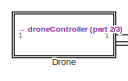
[diagram: root canvas - part 1/3, top left region]
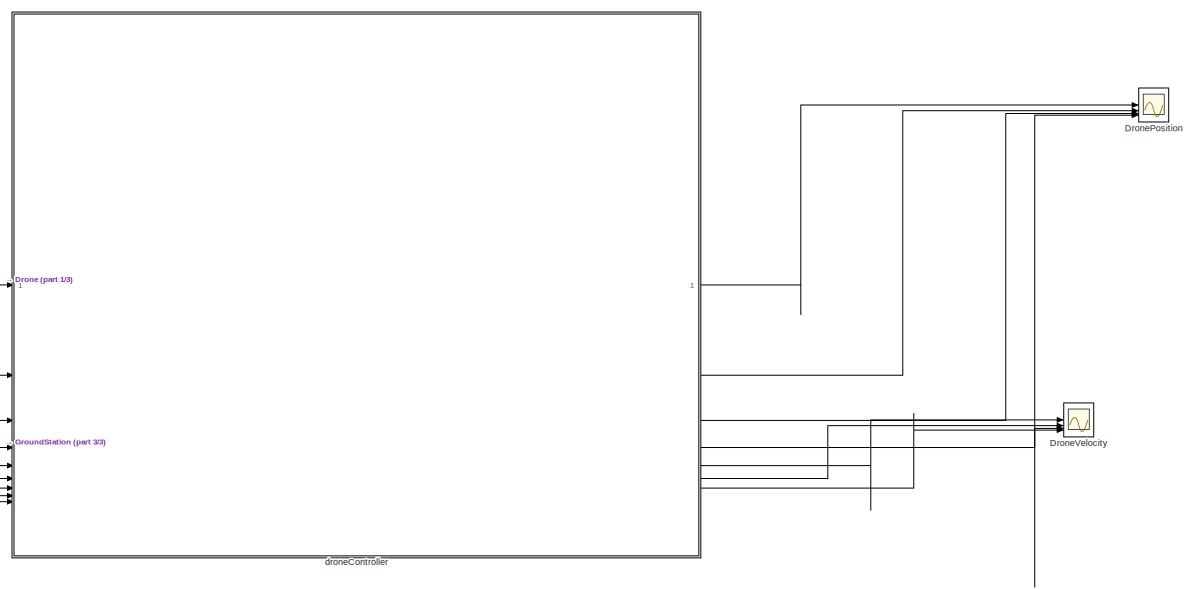
[diagram: root canvas - part 2/3, right side, full height]
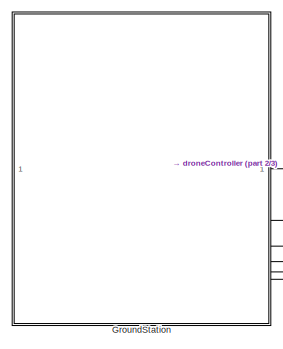
[diagram: root canvas - part 3/3, bottom left region]
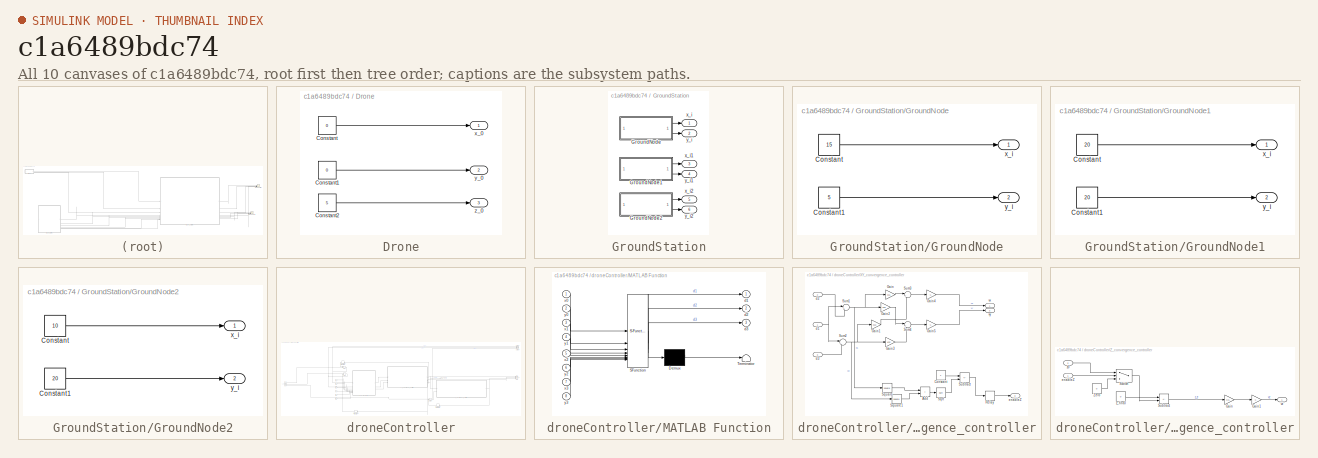
[diagram: thumbnail index - all 10 canvases of the model, root first then tree order]
MODEL slx_c1a6489bdc74
KIND model
CONFIG AbsTol = auto
CONFIG EnableMultiTasking = on
CONFIG FixedStep = 0.001
CONFIG MaxStep = auto
CONFIG MinStep = auto
CONFIG RelTol = 1e-3
CONFIG SampleTimeConstraint = Unconstrained
CONFIG SolverName = FixedStepDiscrete
CONFIG StartTime = 0.0
CONFIG StopTime = 20
WORKSPACE source: mxarray member
WORKSPACE k: Simulink.Parameter (value not decoded)
WORKSPACE k11: Simulink.Parameter (value not decoded)
WORKSPACE k12: Simulink.Parameter (value not decoded)
WORKSPACE k21: Simulink.Parameter (value not decoded)
WORKSPACE k22: Simulink.Parameter (value not decoded)
BLOCK [SubSystem] Drone
BLOCK [Constant] Drone/Constant
  Value = 0
BLOCK [Constant] Drone/Constant1
  Value = 0
BLOCK [Constant] Drone/Constant2
  Value = 5
BLOCK [Outport] Drone/x_0
BLOCK [Outport] Drone/y_0
  Port = 2
BLOCK [Outport] Drone/z_0
  Port = 3
BLOCK [Scope] DronePosition
  Floating = off
  NumInputPorts = 4
  ScopeSpecificationString = Simulink.scopes.TimeScopeBlockCfg('CurrentConfiguration', extmgr.ConfigurationSet(extmgr.Configuration('Core','General UI',true),extmgr.Configuration('Core','Source UI',true),extmgr.Configuration('Sources','WiredSimulink',true,'DataLoggingVariableName','ScopeData2'),extmgr.Configuration('Visuals','Time Domain',true,'SerializedDisplays',{struct('MinYLimReal','-2.07783','MaxYLimReal','18.70045','YLa...<+1579ch>
BLOCK [Scope] DroneVelocity
  Floating = off
  NumInputPorts = 4
  ScopeSpecificationString = Simulink.scopes.TimeScopeBlockCfg('CurrentConfiguration', extmgr.ConfigurationSet(extmgr.Configuration('Core','General UI',true),extmgr.Configuration('Core','Source UI',true),extmgr.Configuration('Sources','WiredSimulink',true,'DataLoggingVariableName','ScopeData1'),extmgr.Configuration('Visuals','Time Domain',true,'SerializedDisplays',{struct('MinYLimReal','-1.34636','MaxYLimReal','7.13439','YLab...<+1632ch>
BLOCK [SubSystem] GroundStation
BLOCK [SubSystem] GroundStation/GroundNode
BLOCK [Constant] GroundStation/GroundNode/Constant
  Value = 15
BLOCK [Constant] GroundStation/GroundNode/Constant1
  Value = 5
BLOCK [Outport] GroundStation/GroundNode/x_i
BLOCK [Outport] GroundStation/GroundNode/y_i
  Port = 2
BLOCK [SubSystem] GroundStation/GroundNode1
BLOCK [Constant] GroundStation/GroundNode1/Constant
  Value = 20
BLOCK [Constant] GroundStation/GroundNode1/Constant1
  Value = 20
BLOCK [Outport] GroundStation/GroundNode1/x_i
BLOCK [Outport] GroundStation/GroundNode1/y_i
  Port = 2
BLOCK [SubSystem] GroundStation/GroundNode2
BLOCK [Constant] GroundStation/GroundNode2/Constant
  Value = 10
BLOCK [Constant] GroundStation/GroundNode2/Constant1
  Value = 20
BLOCK [Outport] GroundStation/GroundNode2/x_i
BLOCK [Outport] GroundStation/GroundNode2/y_i
  Port = 2
BLOCK [Outport] GroundStation/x_i
BLOCK [Outport] GroundStation/x_i1
  Port = 3
BLOCK [Outport] GroundStation/x_i2
  Port = 5
BLOCK [Outport] GroundStation/y_i
  Port = 2
BLOCK [Outport] GroundStation/y_i1
  Port = 4
BLOCK [Outport] GroundStation/y_i2
  Port = 6
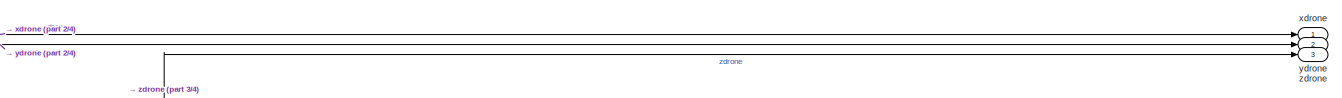
[diagram: droneController - part 1/4, top right region]
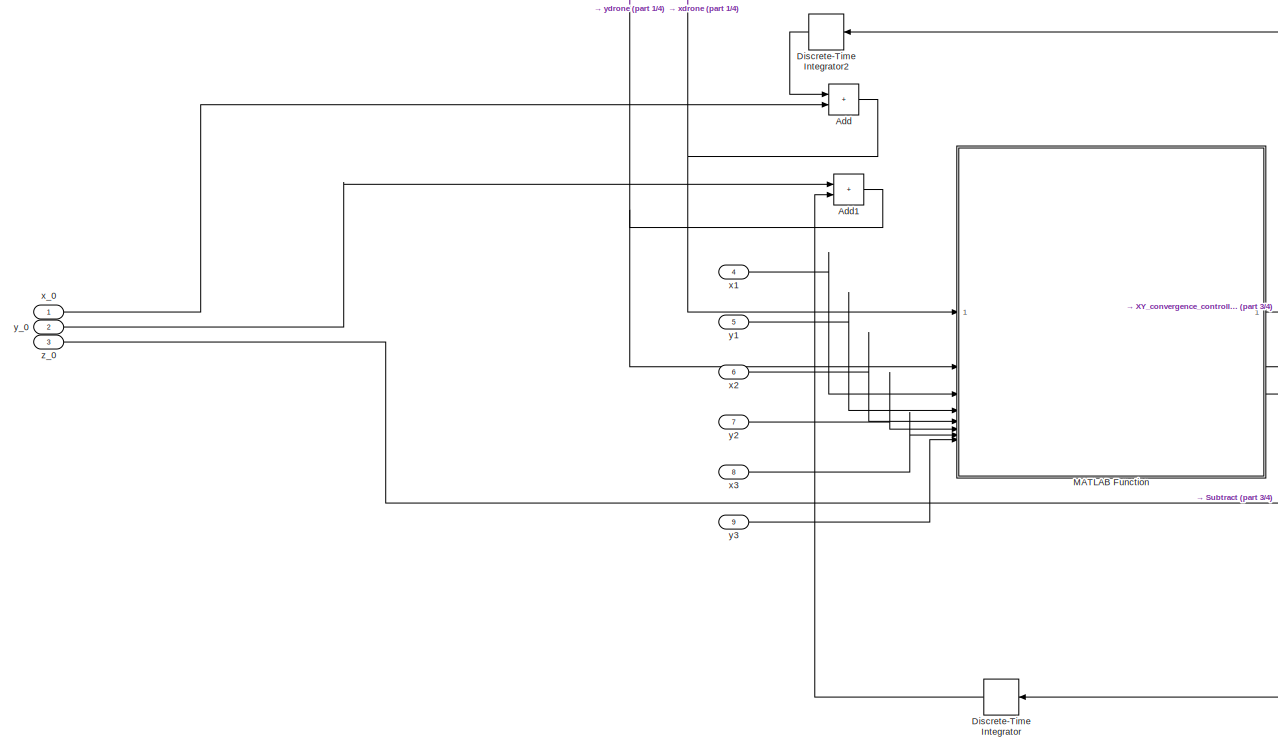
[diagram: droneController - part 2/4, left side, full height]
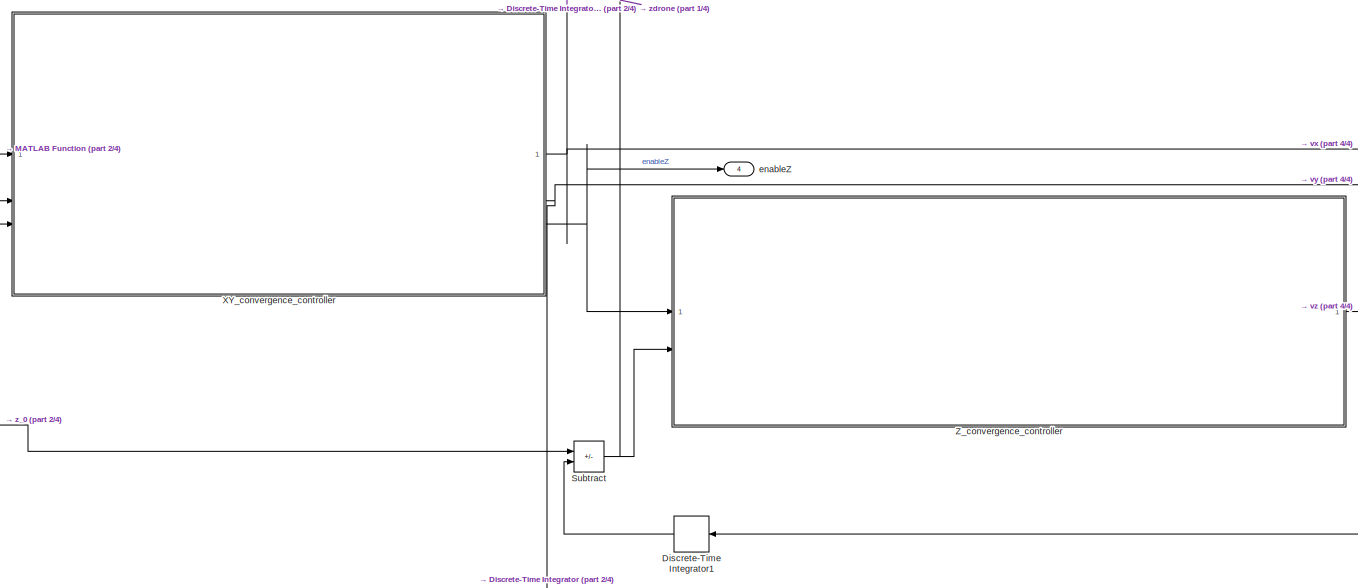
[diagram: droneController - part 3/4, central region]
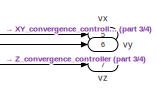
[diagram: droneController - part 4/4, middle right region]
BLOCK [SubSystem] droneController
  AttributesFormatString = %<TreatAsAtomicUnit>
BLOCK [Sum] droneController/Add
  IconShape = rectangular
BLOCK [Sum] droneController/Add1
  IconShape = rectangular
BLOCK [DiscreteIntegrator] droneController/Discrete-Time Integrator
  ICPrevOutput = DiscIntNeverNeededParam
  ICPrevScaledInput = DiscIntNeverNeededParam
  InitialConditionSetting = Auto
  SampleTime = -1
BLOCK [DiscreteIntegrator] droneController/Discrete-Time Integrator1
  ICPrevOutput = DiscIntNeverNeededParam
  ICPrevScaledInput = DiscIntNeverNeededParam
  InitialConditionSetting = Auto
  SampleTime = -1
BLOCK [DiscreteIntegrator] droneController/Discrete-Time Integrator2
  ICPrevOutput = DiscIntNeverNeededParam
  ICPrevScaledInput = DiscIntNeverNeededParam
  InitialConditionSetting = Auto
  SampleTime = -1
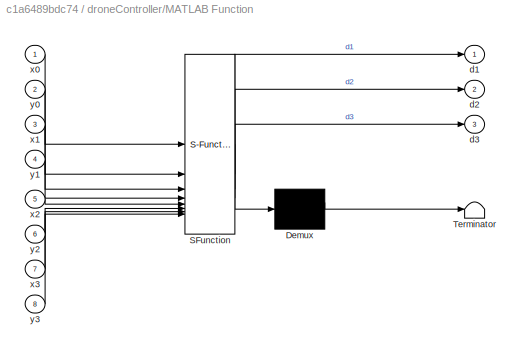
BLOCK [SubSystem] droneController/MATLAB Function
  ErrorFcn = Stateflow.Translate.translate
  PermitHierarchicalResolution = ExplicitOnly
  SFBlockType = MATLAB Function
  TreatAsAtomicUnit = on
BLOCK [Demux] droneController/MATLAB Function/ Demux 
  Outputs = 1
BLOCK [S-Function] droneController/MATLAB Function/ SFunction 
  EnableBusSupport = on
  FunctionName = sf_sfun
  PortCounts = [8 4]
  SFcnIsStateOwnerBlock = off
  SFunctionDeploymentMode = off
  Tag = Stateflow S-Function 2
BLOCK [Terminator] droneController/MATLAB Function/ Terminator 
BLOCK [Outport] droneController/MATLAB Function/d1
BLOCK [Outport] droneController/MATLAB Function/d2
  Port = 2
BLOCK [Outport] droneController/MATLAB Function/d3
  Port = 3
BLOCK [Inport] droneController/MATLAB Function/x0
BLOCK [Inport] droneController/MATLAB Function/x1
  Port = 3
BLOCK [Inport] droneController/MATLAB Function/x2
  Port = 5
BLOCK [Inport] droneController/MATLAB Function/x3
  Port = 7
BLOCK [Inport] droneController/MATLAB Function/y0
  Port = 2
BLOCK [Inport] droneController/MATLAB Function/y1
  Port = 4
BLOCK [Inport] droneController/MATLAB Function/y2
  Port = 6
BLOCK [Inport] droneController/MATLAB Function/y3
  Port = 8
BLOCK [Sum] droneController/Subtract
  IconShape = rectangular
  Inputs = +-
BLOCK [SubSystem] droneController/XY_convergence_controller
BLOCK [Sum] droneController/XY_convergence_controller/Add
  IconShape = rectangular
BLOCK [Constant] droneController/XY_convergence_controller/Constant
BLOCK [Gain] droneController/XY_convergence_controller/Gain
  Gain = k11
BLOCK [Gain] droneController/XY_convergence_controller/Gain1
  Gain = k12
BLOCK [Gain] droneController/XY_convergence_controller/Gain2
  Gain = k21
BLOCK [Gain] droneController/XY_convergence_controller/Gain3
  Gain = k22
BLOCK [Gain] droneController/XY_convergence_controller/Gain4
  Gain = -1
BLOCK [Gain] droneController/XY_convergence_controller/Gain5
  Gain = -1
BLOCK [Relay] droneController/XY_convergence_controller/Relay
  OffSwitchValue = 0.92
  OnSwitchValue = 0.95
BLOCK [Sqrt] droneController/XY_convergence_controller/Sqrt
BLOCK [Math] droneController/XY_convergence_controller/Square
  Operator = square
BLOCK [Math] droneController/XY_convergence_controller/Square1
  Operator = square
BLOCK [Sum] droneController/XY_convergence_controller/Subtract
  IconShape = rectangular
  Inputs = +-
BLOCK [Sum] droneController/XY_convergence_controller/Sum1
  Inputs = |+-
BLOCK [Sum] droneController/XY_convergence_controller/Sum2
  Inputs = |+-
BLOCK [Sum] droneController/XY_convergence_controller/Sum3
  Inputs = |++
BLOCK [Sum] droneController/XY_convergence_controller/Sum4
  Inputs = |++
BLOCK [Inport] droneController/XY_convergence_controller/d1
BLOCK [Inport] droneController/XY_convergence_controller/d2
  Port = 2
BLOCK [Inport] droneController/XY_convergence_controller/d3
  Port = 3
BLOCK [Outport] droneController/XY_convergence_controller/enableZ
  Port = 3
BLOCK [Outport] droneController/XY_convergence_controller/vx
BLOCK [Outport] droneController/XY_convergence_controller/vy
  Port = 2
BLOCK [SubSystem] droneController/Z_convergence_controller
BLOCK [Gain] droneController/Z_convergence_controller/Gain
  Gain = 0.5
BLOCK [Gain] droneController/Z_convergence_controller/Gain1
  Gain = -1
BLOCK [Sum] droneController/Z_convergence_controller/Subtract
  IconShape = rectangular
  Inputs = +-
BLOCK [Switch] droneController/Z_convergence_controller/Switch
  Criteria = u2 > Threshold
  InputSameDT = off
  SaturateOnIntegerOverflow = off
BLOCK [Constant] droneController/Z_convergence_controller/Zero
  OutDataTypeStr = Inherit: Inherit via back propagation
  Value = 0
BLOCK [Inport] droneController/Z_convergence_controller/enableZ
BLOCK [Outport] droneController/Z_convergence_controller/vz
BLOCK [Inport] droneController/Z_convergence_controller/z0
  Port = 2
BLOCK [Constant] droneController/Z_convergence_controller/z_final
  Value = 0
BLOCK [Outport] droneController/enableZ
  Port = 4
BLOCK [Outport] droneController/vx
  Port = 5
BLOCK [Outport] droneController/vy
  Port = 6
BLOCK [Outport] droneController/vz
  Port = 7
BLOCK [Inport] droneController/x1
  Port = 4
BLOCK [Inport] droneController/x2
  Port = 6
BLOCK [Inport] droneController/x3
  Port = 8
BLOCK [Inport] droneController/x_0
BLOCK [Outport] droneController/xdrone
BLOCK [Inport] droneController/y1
  Port = 5
BLOCK [Inport] droneController/y2
  Port = 7
BLOCK [Inport] droneController/y3
  Port = 9
BLOCK [Inport] droneController/y_0
  Port = 2
BLOCK [Outport] droneController/ydrone
  Port = 2
BLOCK [Inport] droneController/z_0
  Port = 3
BLOCK [Outport] droneController/zdrone
  Port = 3
LINE Drone/Constant1:1 -> Drone/y_0:1
LINE Drone/Constant2:1 -> Drone/z_0:1
LINE Drone/Constant:1 -> Drone/x_0:1
LINE Drone:1 -> droneController:1
LINE Drone:2 -> droneController:2
LINE Drone:3 -> droneController:3
LINE GroundStation/GroundNode/Constant1:1 -> GroundStation/GroundNode/y_i:1
LINE GroundStation/GroundNode/Constant:1 -> GroundStation/GroundNode/x_i:1
LINE GroundStation/GroundNode1/Constant1:1 -> GroundStation/GroundNode1/y_i:1
LINE GroundStation/GroundNode1/Constant:1 -> GroundStation/GroundNode1/x_i:1
LINE GroundStation/GroundNode1:1 -> GroundStation/x_i1:1
LINE GroundStation/GroundNode1:2 -> GroundStation/y_i1:1
LINE GroundStation/GroundNode2/Constant1:1 -> GroundStation/GroundNode2/y_i:1
LINE GroundStation/GroundNode2/Constant:1 -> GroundStation/GroundNode2/x_i:1
LINE GroundStation/GroundNode2:1 -> GroundStation/x_i2:1
LINE GroundStation/GroundNode2:2 -> GroundStation/y_i2:1
LINE GroundStation/GroundNode:1 -> GroundStation/x_i:1
LINE GroundStation/GroundNode:2 -> GroundStation/y_i:1
LINE GroundStation:1 -> droneController:4
LINE GroundStation:2 -> droneController:5
LINE GroundStation:3 -> droneController:6
LINE GroundStation:4 -> droneController:7
LINE GroundStation:5 -> droneController:8
LINE GroundStation:6 -> droneController:9
NET droneController/Add1:1 -> droneController/MATLAB Function:2, droneController/ydrone:1
NET droneController/Add:1 -> droneController/MATLAB Function:1, droneController/xdrone:1
LINE droneController/Discrete-Time Integrator1:1 -> droneController/Subtract:2
LINE droneController/Discrete-Time Integrator2:1 -> droneController/Add:1
LINE droneController/Discrete-Time Integrator:1 -> droneController/Add1:2
LINE droneController/MATLAB Function:1 -> droneController/XY_convergence_controller:1
LINE droneController/MATLAB Function:2 -> droneController/XY_convergence_controller:2
LINE droneController/MATLAB Function:3 -> droneController/XY_convergence_controller:3
NET droneController/Subtract:1 -> droneController/Z_convergence_controller:2, droneController/zdrone:1
LINE droneController/XY_convergence_controller/Add:1 -> droneController/XY_convergence_controller/Sqrt:1
LINE droneController/XY_convergence_controller/Constant:1 -> droneController/XY_convergence_controller/Subtract:1
LINE droneController/XY_convergence_controller/Gain1:1 -> droneController/XY_convergence_controller/Sum3:2
LINE droneController/XY_convergence_controller/Gain2:1 -> droneController/XY_convergence_controller/Sum4:1
LINE droneController/XY_convergence_controller/Gain3:1 -> droneController/XY_convergence_controller/Sum4:2
LINE droneController/XY_convergence_controller/Gain4:1 -> droneController/XY_convergence_controller/vx:1
LINE droneController/XY_convergence_controller/Gain5:1 -> droneController/XY_convergence_controller/vy:1
LINE droneController/XY_convergence_controller/Gain:1 -> droneController/XY_convergence_controller/Sum3:1
LINE droneController/XY_convergence_controller/Relay:1 -> droneController/XY_convergence_controller/enableZ:1
LINE droneController/XY_convergence_controller/Sqrt:1 -> droneController/XY_convergence_controller/Subtract:2
LINE droneController/XY_convergence_controller/Square1:1 -> droneController/XY_convergence_controller/Add:2
LINE droneController/XY_convergence_controller/Square:1 -> droneController/XY_convergence_controller/Add:1
LINE droneController/XY_convergence_controller/Subtract:1 -> droneController/XY_convergence_controller/Relay:1
NET droneController/XY_convergence_controller/Sum1:1 -> droneController/XY_convergence_controller/Gain2:1, droneController/XY_convergence_controller/Gain:1, droneController/XY_convergence_controller/Square:1
NET droneController/XY_convergence_controller/Sum2:1 -> droneController/XY_convergence_controller/Gain1:1, droneController/XY_convergence_controller/Gain3:1, droneController/XY_convergence_controller/Square1:1
LINE droneController/XY_convergence_controller/Sum3:1 -> droneController/XY_convergence_controller/Gain4:1
LINE droneController/XY_convergence_controller/Sum4:1 -> droneController/XY_convergence_controller/Gain5:1
NET droneController/XY_convergence_controller/d1:1 -> droneController/XY_convergence_controller/Sum1:1, droneController/XY_convergence_controller/Sum2:1
LINE droneController/XY_convergence_controller/d2:1 -> droneController/XY_convergence_controller/Sum1:2
LINE droneController/XY_convergence_controller/d3:1 -> droneController/XY_convergence_controller/Sum2:2
NET droneController/XY_convergence_controller:1 -> droneController/Discrete-Time Integrator2:1, droneController/vx:1
NET droneController/XY_convergence_controller:2 -> droneController/Discrete-Time Integrator:1, droneController/vy:1
NET droneController/XY_convergence_controller:3 -> droneController/Z_convergence_controller:1, droneController/enableZ:1
LINE droneController/Z_convergence_controller/Gain1:1 -> droneController/Z_convergence_controller/vz:1
LINE droneController/Z_convergence_controller/Gain:1 -> droneController/Z_convergence_controller/Gain1:1
LINE droneController/Z_convergence_controller/Subtract:1 -> droneController/Z_convergence_controller/Gain:1
LINE droneController/Z_convergence_controller/Switch:1 -> droneController/Z_convergence_controller/Subtract:2
LINE droneController/Z_convergence_controller/Zero:1 -> droneController/Z_convergence_controller/Switch:3
LINE droneController/Z_convergence_controller/enableZ:1 -> droneController/Z_convergence_controller/Switch:2
LINE droneController/Z_convergence_controller/z0:1 -> droneController/Z_convergence_controller/Switch:1
LINE droneController/Z_convergence_controller/z_final:1 -> droneController/Z_convergence_controller/Subtract:1
NET droneController/Z_convergence_controller:1 -> droneController/Discrete-Time Integrator1:1, droneController/vz:1
LINE droneController/x1:1 -> droneController/MATLAB Function:3
LINE droneController/x2:1 -> droneController/MATLAB Function:5
LINE droneController/x3:1 -> droneController/MATLAB Function:7
LINE droneController/x_0:1 -> droneController/Add:2
LINE droneController/y1:1 -> droneController/MATLAB Function:4
LINE droneController/y2:1 -> droneController/MATLAB Function:6
LINE droneController/y3:1 -> droneController/MATLAB Function:8
LINE droneController/y_0:1 -> droneController/Add1:1
LINE droneController/z_0:1 -> droneController/Subtract:1
LINE droneController:1 -> DronePosition:1
LINE droneController:2 -> DronePosition:2
LINE droneController:3 -> DronePosition:3
NET droneController:4 -> DronePosition:4, DroneVelocity:3
LINE droneController:5 -> DroneVelocity:1
LINE droneController:6 -> DroneVelocity:2
LINE droneController:7 -> DroneVelocity:4
note: NET lines group one-source signal fan-out (src -> all destinations, sorted); 1:1 wires keep LINE
CHART droneController/MATLAB Function states=1 transitions=1
  STATE_LABEL 'eML_blk_kernel()'
  STATE_LABEL 'SCRIPT:\nfunction [d1,d2,d3] = computeDistances(x0,y0, x1, y1, x2, y2, x3, y3)\n    x_nodes = [x1,x2,x3];\n    y_nodes = [y1,y2,y3];\n    d1 = sqrt((x0 - x_nodes(1))^2 + (y0 - y_nodes(1))^2);\n    d2 = sqrt((x0 - x_nodes(2))^2 + (y0 - y_nodes(2))^2);\n    d3 = sqrt((x0 - x_nodes(3))^2 + (y0 - y_nodes(3))^2);\nend\n'
CHART  states=0 transitions=0
